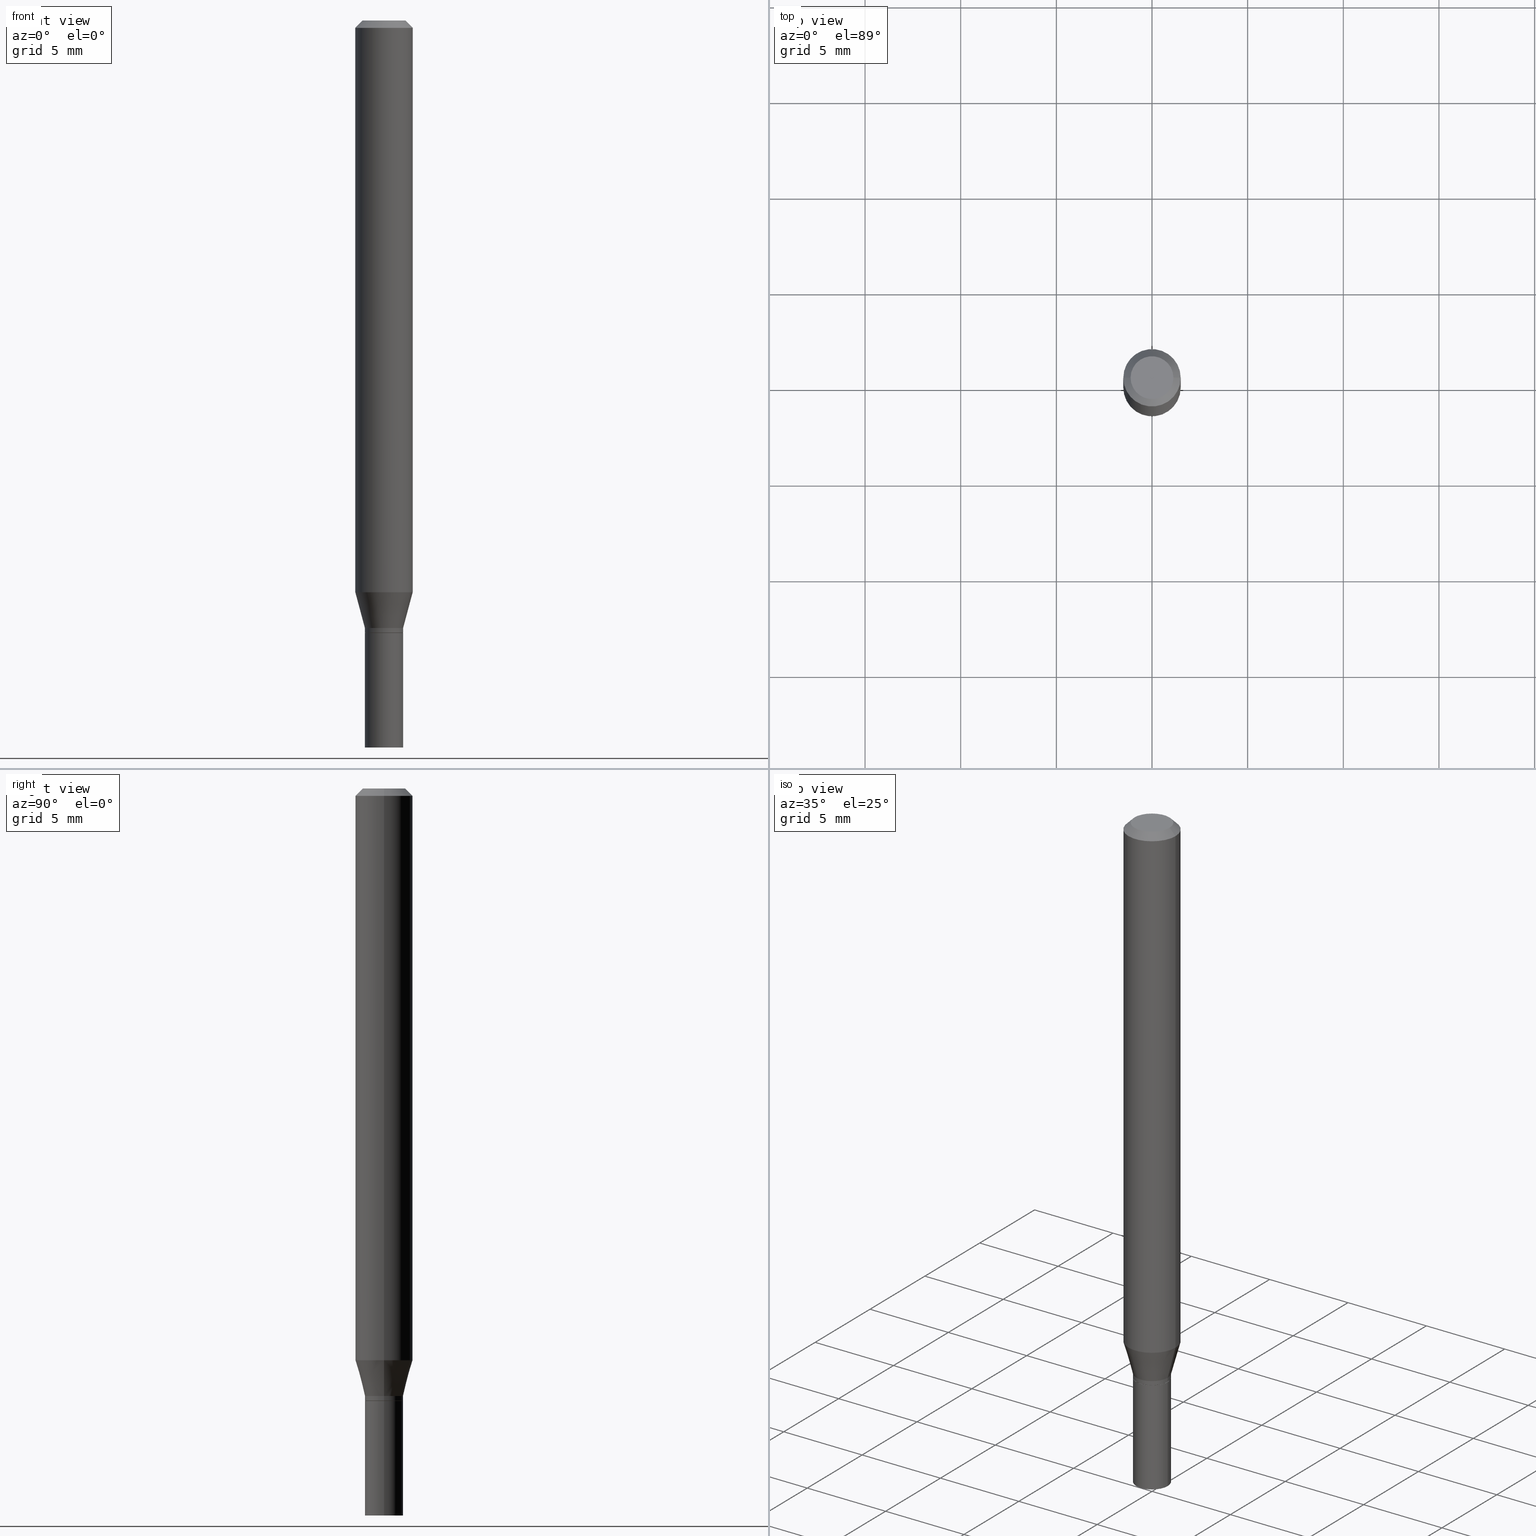
[diagram: canonical four-view strip — front | top / right | iso, engineering-drawing reading convention]
A machine part, canonical four-view strip (front | top / right | iso — engineering-drawing reading convention). The complete STEP part file that produces these views, byte-faithful:
ISO-10303-21;
HEADER;
FILE_DESCRIPTION (( 'STEP AP203' ),
    '1' );
FILE_NAME ('01841.STEP',
    '2024-03-20T01:55:53',
    ( '' ),
    ( '' ),
    'SwSTEP 2.0',
    'SolidWorks 2023',
    '' );
FILE_SCHEMA (( 'CONFIG_CONTROL_DESIGN' ));
ENDSEC;

DATA;
#1 = CARTESIAN_POINT ( 'NONE',  ( 0.03935000000000000303, -5.498384812410184577E-15, -1.496099999999999985 ) ) ;
#2 = AXIS2_PLACEMENT_3D ( 'NONE', #87, #148, #304 ) ;
#3 = CIRCLE ( 'NONE', #448, 0.03934999999999963527 ) ;
#4 = CYLINDRICAL_SURFACE ( 'NONE', #138, 0.03934999999999991283 ) ;
#5 = VERTEX_POINT ( 'NONE', #370 ) ;
#6 = VECTOR ( 'NONE', #249, 39.37007874015748143 ) ;
#7 = AXIS2_PLACEMENT_3D ( 'NONE', #216, #183, #440 ) ;
#8 = LINE ( 'NONE', #41, #355 ) ;
#9 = ORIENTED_EDGE ( 'NONE', *, *, #357, .T. ) ;
#10 = CARTESIAN_POINT ( 'NONE',  ( 3.668203209277705088E-31, -5.237222008264718399E-17, -0.01499999999999999944 ) ) ;
#11 = ORIENTED_EDGE ( 'NONE', *, *, #408, .T. ) ;
#12 = CARTESIAN_POINT ( 'NONE',  ( -0.03935000000000019732, -4.117573031617456554E-15, -1.259399999999999853 ) ) ;
#13 = CARTESIAN_POINT ( 'NONE',  ( 0.03934999999999991283, -2.747795813669539801E-16, 1.918775561275696519E-30 ) ) ;
#14 = DIRECTION ( 'NONE',  ( -1.000000000000000000, 6.982962677686265922E-15, -4.876176775795935793E-29 ) ) ;
#15 = APPROVAL ( #19, 'UNSPECIFIED' ) ;
#16 = CARTESIAN_POINT ( 'NONE',  ( 0.000000000000000000, 0.000000000000000000, 0.000000000000000000 ) ) ;
#17 = ADVANCED_FACE ( 'NONE', ( #307 ), #339, .T. ) ;
#18 = CARTESIAN_POINT ( 'NONE',  ( -0.03935000000000000303, -4.531662718404255344E-15, -1.259899999999999798 ) ) ;
#19 = APPROVAL_STATUS ( 'not_yet_approved' ) ;
#20 = EDGE_LOOP ( 'NONE', ( #153, #9, #322, #292 ) ) ;
#21 = VECTOR ( 'NONE', #61, 39.37007874015748143 ) ;
#22 = DIRECTION ( 'NONE',  ( 1.000000000000000000, 0.000000000000000000, 0.000000000000000000 ) ) ;
#23 = ADVANCED_FACE ( 'NONE', ( #302 ), #84, .T. ) ;
#24 = FACE_OUTER_BOUND ( 'NONE', #257, .T. ) ;
#25 = ORIENTED_EDGE ( 'NONE', *, *, #149, .T. ) ;
#26 = CARTESIAN_POINT ( 'NONE',  ( 0.000000000000000000, 0.000000000000000000, 0.000000000000000000 ) ) ;
#27 = COORDINATED_UNIVERSAL_TIME_OFFSET ( 5, 0, .BEHIND. ) ;
#28 = CARTESIAN_POINT ( 'NONE',  ( 0.05904999999999999832, -4.574846268510561447E-16, -0.01499999999999999944 ) ) ;
#29 = VECTOR ( 'NONE', #32, 39.37007874015748854 ) ;
#30 = AXIS2_PLACEMENT_3D ( 'NONE', #295, #434, #112 ) ;
#31 = EDGE_LOOP ( 'NONE', ( #394, #329, #110, #435 ) ) ;
#32 = DIRECTION ( 'NONE',  ( 0.2588190451025211836, 1.565188264969622559E-15, 0.9659258262890679791 ) ) ;
#33 = ORIENTED_EDGE ( 'NONE', *, *, #289, .T. ) ;
#34 = CARTESIAN_POINT ( 'NONE',  ( 3.081046148912652946E-29, -4.398917338808479031E-15, -1.259899999999999798 ) ) ;
#35 = EDGE_CURVE ( 'NONE', #396, #309, #231, .T. ) ;
#36 = CLOSED_SHELL ( 'NONE', ( #464, #356, #17, #367 ) ) ;
#37 = AXIS2_PLACEMENT_3D ( 'NONE', #10, #251, #433 ) ;
#38 = EDGE_CURVE ( 'NONE', #208, #396, #125, .T. ) ;
#39 = ORIENTED_EDGE ( 'NONE', *, *, #38, .F. ) ;
#40 = DIRECTION ( 'NONE',  ( -1.000000000000000000, 6.982962677686265922E-15, -4.876176775795935793E-29 ) ) ;
#41 = CARTESIAN_POINT ( 'NONE',  ( -0.03885000000000000259, -4.122871485965678956E-15, -1.259899999999999576 ) ) ;
#42 = ORIENTED_EDGE ( 'NONE', *, *, #149, .F. ) ;
#43 = EDGE_CURVE ( 'NONE', #330, #48, #178, .T. ) ;
#44 = DIRECTION ( 'NONE',  ( 1.000000000000000000, -6.982962677686266711E-15, 4.876176775795936353E-29 ) ) ;
#45 = PLANE ( 'NONE',  #141 ) ;
#46 = AXIS2_PLACEMENT_3D ( 'NONE', #96, #90, #172 ) ;
#47 = SECURITY_CLASSIFICATION ( '', '', #103 ) ;
#48 = VERTEX_POINT ( 'NONE', #18 ) ;
#49 =( LENGTH_UNIT ( ) NAMED_UNIT ( * ) SI_UNIT ( $, .METRE. ) );
#50 = DIRECTION ( 'NONE',  ( -2.445468806185136597E-29, 3.491481338843145583E-15, 1.000000000000000000 ) ) ;
#51 = APPLICATION_PROTOCOL_DEFINITION ( 'international standard', 'config_control_design', 1994, #462 ) ;
#52 = CARTESIAN_POINT ( 'NONE',  ( 0.000000000000000000, 0.000000000000000000, 0.000000000000000000 ) ) ;
#53 = AXIS2_PLACEMENT_3D ( 'NONE', #147, #111, #255 ) ;
#54 = DIRECTION ( 'NONE',  ( -0.2588190451025211836, 5.211531920934547886E-15, 0.9659258262890679791 ) ) ;
#55 = PERSON_AND_ORGANIZATION ( #139, #387 ) ;
#56 = ORIENTED_EDGE ( 'NONE', *, *, #171, .T. ) ;
#57 = ADVANCED_FACE ( 'NONE', ( #151 ), #334, .F. ) ;
#58 = CARTESIAN_POINT ( 'NONE',  ( 0.05904999999999999832, -4.647161662000212105E-16, -0.01499999999999999944 ) ) ;
#59 =( NAMED_UNIT ( * ) SI_UNIT ( $, .STERADIAN. ) SOLID_ANGLE_UNIT ( ) );
#60 = ORIENTED_EDGE ( 'NONE', *, *, #317, .T. ) ;
#61 = DIRECTION ( 'NONE',  ( 0.7071067811865502373, -7.319954787623265512E-15, -0.7071067811865447972 ) ) ;
#62 = APPROVAL_STATUS ( 'not_yet_approved' ) ;
#63 = EDGE_LOOP ( 'NONE', ( #239, #11, #429, #156 ) ) ;
#64 = DIRECTION ( 'NONE',  ( 1.000000000000000000, -6.982962677686269077E-15, 0.000000000000000000 ) ) ;
#65 = CONICAL_SURFACE ( 'NONE', #115, 0.03934999999999963527, 0.2617993877991499074 ) ;
#66 = ORIENTED_EDGE ( 'NONE', *, *, #261, .T. ) ;
#67 = DIRECTION ( 'NONE',  ( -2.445468806185136597E-29, 3.491481338843145583E-15, 1.000000000000000000 ) ) ;
#68 = CIRCLE ( 'NONE', #333, 0.04404999999999999888 ) ;
#69 = CONICAL_SURFACE ( 'NONE', #403, 0.03885000000000000259, 0.7853981633980202659 ) ;
#70 = ORIENTED_EDGE ( 'NONE', *, *, #317, .F. ) ;
#71 = ORIENTED_EDGE ( 'NONE', *, *, #116, .T. ) ;
#72 = CARTESIAN_POINT ( 'NONE',  ( 3.081046148912652386E-29, -4.398917338808477453E-15, -1.259899999999999576 ) ) ;
#73 = DIRECTION ( 'NONE',  ( -0.7071067811869518049, 7.493145998871813553E-15, 0.7071067811861430075 ) ) ;
#74 = EDGE_LOOP ( 'NONE', ( #456, #145, #71, #270 ) ) ;
#75 = AXIS2_PLACEMENT_3D ( 'NONE', #127, #463, #64 ) ;
#76 = CC_DESIGN_PERSON_AND_ORGANIZATION_ASSIGNMENT ( #277, #466, ( #459 ) ) ;
#77 = DIRECTION ( 'NONE',  ( 1.000000000000000000, -6.982962677686265922E-15, 4.888540261209747396E-29 ) ) ;
#78 = UNCERTAINTY_MEASURE_WITH_UNIT (LENGTH_MEASURE( 1.000000000000000082E-05 ), #374, 'distance_accuracy_value', 'NONE');
#79 = CIRCLE ( 'NONE', #305, 0.05904999999999999832 ) ;
#80 = ORIENTED_EDGE ( 'NONE', *, *, #416, .F. ) ;
#81 = DATE_TIME_ROLE ( 'creation_date' ) ;
#82 = ORIENTED_EDGE ( 'NONE', *, *, #441, .T. ) ;
#83 = CARTESIAN_POINT ( 'NONE',  ( 0.000000000000000000, 0.000000000000000000, 0.000000000000000000 ) ) ;
#84 = CYLINDRICAL_SURFACE ( 'NONE', #205, 0.05904999999999999832 ) ;
#85 = CARTESIAN_POINT ( 'NONE',  ( 3.079823414509561266E-29, -4.397171598139057527E-15, -1.259399999999999853 ) ) ;
#86 = ORIENTED_EDGE ( 'NONE', *, *, #104, .T. ) ;
#87 = CARTESIAN_POINT ( 'NONE',  ( 3.081046148912652946E-29, -4.398917338808479031E-15, -1.259899999999999798 ) ) ;
#88 = APPROVAL_DATE_TIME ( #124, #15 ) ;
#89 = VECTOR ( 'NONE', #368, 39.37007874015748143 ) ;
#90 = DIRECTION ( 'NONE',  ( -2.445468806185136597E-29, 3.491481338843145583E-15, 1.000000000000000000 ) ) ;
#91 = APPROVAL ( #62, 'UNSPECIFIED' ) ;
#92 = ORIENTED_EDGE ( 'NONE', *, *, #181, .F. ) ;
#93 = EDGE_CURVE ( 'NONE', #114, #5, #296, .T. ) ;
#94 = LINE ( 'NONE', #420, #29 ) ;
#95 = CARTESIAN_POINT ( 'NONE',  ( -0.03934999999999963527, -3.886764496053970286E-15, -1.250099999999999767 ) ) ;
#96 = CARTESIAN_POINT ( 'NONE',  ( 0.000000000000000000, 0.000000000000000000, 0.000000000000000000 ) ) ;
#97 = AXIS2_PLACEMENT_3D ( 'NONE', #268, #185, #405 ) ;
#98 = DIRECTION ( 'NONE',  ( -1.000000000000000000, 6.982962677686266711E-15, 0.000000000000000000 ) ) ;
#99 = AXIS2_PLACEMENT_3D ( 'NONE', #186, #143, #40 ) ;
#100 = COORDINATED_UNIVERSAL_TIME_OFFSET ( 5, 0, .BEHIND. ) ;
#101 = DIRECTION ( 'NONE',  ( 1.000000000000000000, -6.982962677686265922E-15, 4.888540261209747396E-29 ) ) ;
#102 = EDGE_CURVE ( 'NONE', #162, #348, #163, .T. ) ;
#103 = SECURITY_CLASSIFICATION_LEVEL ( 'unclassified' ) ;
#104 = EDGE_CURVE ( 'NONE', #309, #284, #228, .T. ) ;
#105 = DIRECTION ( 'NONE',  ( 1.000000000000000000, -6.982962677686266711E-15, 4.876176775795935793E-29 ) ) ;
#106 = MANIFOLD_SOLID_BREP ( 'Body-Move/Copy2[1]', #36 ) ;
#107 = CARTESIAN_POINT ( 'NONE',  ( 0.03934999999999963527, -4.639480403054768534E-15, -1.250099999999999767 ) ) ;
#108 = EDGE_LOOP ( 'NONE', ( #70, #25, #66, #202 ) ) ;
#109 = FACE_OUTER_BOUND ( 'NONE', #342, .T. ) ;
#110 = ORIENTED_EDGE ( 'NONE', *, *, #201, .T. ) ;
#111 = DIRECTION ( 'NONE',  ( -2.445468806185136597E-29, 3.491481338843145583E-15, 1.000000000000000000 ) ) ;
#112 = DIRECTION ( 'NONE',  ( -1.000000000000000000, 6.982962677686266711E-15, 0.000000000000000000 ) ) ;
#113 = EDGE_CURVE ( 'NONE', #236, #114, #389, .T. ) ;
#114 = VERTEX_POINT ( 'NONE', #58 ) ;
#115 = AXIS2_PLACEMENT_3D ( 'NONE', #158, #238, #415 ) ;
#116 = EDGE_CURVE ( 'NONE', #327, #5, #319, .T. ) ;
#117 = DIRECTION ( 'NONE',  ( -2.445468806185136597E-29, 3.491481338843145583E-15, 1.000000000000000000 ) ) ;
#118 = CYLINDRICAL_SURFACE ( 'NONE', #413, 0.03935000000000000303 ) ;
#119 = DIRECTION ( 'NONE',  ( 1.000000000000000000, -6.982962677686266711E-15, 4.876176775795936353E-29 ) ) ;
#120 = PERSON_AND_ORGANIZATION_ROLE ( 'creator' ) ;
#121 = AXIS2_PLACEMENT_3D ( 'NONE', #222, #150, #44 ) ;
#122 = ORIENTED_EDGE ( 'NONE', *, *, #310, .T. ) ;
#123 = DIRECTION ( 'NONE',  ( 1.000000000000000000, -6.982962677686266711E-15, 0.000000000000000000 ) ) ;
#124 = DATE_AND_TIME ( #409, #248 ) ;
#125 = LINE ( 'NONE', #13, #89 ) ;
#126 = ORIENTED_EDGE ( 'NONE', *, *, #260, .F. ) ;
#127 = CARTESIAN_POINT ( 'NONE',  ( 3.658665880933582389E-29, -5.223605231043229660E-15, -1.496099999999999985 ) ) ;
#128 = CC_DESIGN_PERSON_AND_ORGANIZATION_ASSIGNMENT ( #136, #384, ( #47 ) ) ;
#129 = ADVANCED_FACE ( 'NONE', ( #234 ), #427, .T. ) ;
#130 = VERTEX_POINT ( 'NONE', #411 ) ;
#131 = LOCAL_TIME ( 21, 55, 53.00000000000000000, #27 ) ;
#132 = DIRECTION ( 'NONE',  ( -2.445468806185136597E-29, 3.491481338843145583E-15, 1.000000000000000000 ) ) ;
#133 = FACE_OUTER_BOUND ( 'NONE', #278, .T. ) ;
#134 = EDGE_LOOP ( 'NONE', ( #366, #122, #432, #254 ) ) ;
#135 = DIRECTION ( 'NONE',  ( 1.000000000000000000, -6.982962677686265133E-15, 0.000000000000000000 ) ) ;
#136 = PERSON_AND_ORGANIZATION ( #139, #387 ) ;
#137 = CARTESIAN_POINT ( 'NONE',  ( 0.05904999999999999832, -4.123439461173740327E-16, 2.879382386107500220E-30 ) ) ;
#138 = AXIS2_PLACEMENT_3D ( 'NONE', #83, #233, #105 ) ;
#139 = PERSON ( 'UNSPECIFIED', 'UNSPECIFIED', 'UNSPECIFIED', ('UNSPECIFIED'), ('UNSPECIFIED'), ('UNSPECIFIED') ) ;
#140 = VECTOR ( 'NONE', #54, 39.37007874015748854 ) ;
#141 = AXIS2_PLACEMENT_3D ( 'NONE', #395, #365, #14 ) ;
#142 = ORIENTED_EDGE ( 'NONE', *, *, #102, .F. ) ;
#143 = DIRECTION ( 'NONE',  ( 2.438088387897960049E-29, -3.491481338843145188E-15, -1.000000000000000000 ) ) ;
#144 = CARTESIAN_POINT ( 'NONE',  ( 0.03935000000000000303, -4.673696920175433159E-15, -1.259899999999999798 ) ) ;
#145 = ORIENTED_EDGE ( 'NONE', *, *, #213, .F. ) ;
#146 = DIRECTION ( 'NONE',  ( 1.000000000000000000, -6.982962677686265133E-15, 0.000000000000000000 ) ) ;
#147 = CARTESIAN_POINT ( 'NONE',  ( 3.081046148912652386E-29, -4.398917338808477453E-15, -1.259899999999999576 ) ) ;
#148 = DIRECTION ( 'NONE',  ( -2.438088387897960049E-29, 3.491481338843145188E-15, 1.000000000000000000 ) ) ;
#149 = EDGE_CURVE ( 'NONE', #215, #300, #458, .T. ) ;
#150 = DIRECTION ( 'NONE',  ( -2.445468806185136597E-29, 3.491481338843145583E-15, 1.000000000000000000 ) ) ;
#151 = FACE_OUTER_BOUND ( 'NONE', #418, .T. ) ;
#152 = APPROVAL_ROLE ( '' ) ;
#153 = ORIENTED_EDGE ( 'NONE', *, *, #104, .F. ) ;
#154 = AXIS2_PLACEMENT_3D ( 'NONE', #52, #263, #22 ) ;
#155 = DIRECTION ( 'NONE',  ( -2.445468806185136597E-29, 3.491481338843145583E-15, 1.000000000000000000 ) ) ;
#156 = ORIENTED_EDGE ( 'NONE', *, *, #201, .F. ) ;
#157 = CC_DESIGN_DATE_AND_TIME_ASSIGNMENT ( #404, #81, ( #378 ) ) ;
#158 = CARTESIAN_POINT ( 'NONE',  ( 3.057080554612038970E-29, -4.364700821687815983E-15, -1.250099999999999767 ) ) ;
#159 = ORIENTED_EDGE ( 'NONE', *, *, #116, .F. ) ;
#160 = DIRECTION ( 'NONE',  ( 1.000000000000000000, -6.982962677686256455E-15, 0.000000000000000000 ) ) ;
#161 = CALENDAR_DATE ( 2024, 19, 3 ) ;
#162 = VERTEX_POINT ( 'NONE', #1 ) ;
#163 = CIRCLE ( 'NONE', #97, 0.03935000000000000303 ) ;
#164 =( GEOMETRIC_REPRESENTATION_CONTEXT ( 3 ) GLOBAL_UNCERTAINTY_ASSIGNED_CONTEXT ( ( #78 ) ) GLOBAL_UNIT_ASSIGNED_CONTEXT ( ( #374, #312, #59 ) ) REPRESENTATION_CONTEXT ( 'NONE', 'WORKASPACE' ) );
#165 = CARTESIAN_POINT ( 'NONE',  ( 3.668203209277705088E-31, -5.237222008264718399E-17, -0.01499999999999999944 ) ) ;
#166 = ORIENTED_EDGE ( 'NONE', *, *, #113, .T. ) ;
#167 = DIRECTION ( 'NONE',  ( 0.7071067811869518049, -2.468850131086492060E-15, 0.7071067811861430075 ) ) ;
#168 = APPROVAL_DATE_TIME ( #421, #91 ) ;
#169 = EDGE_CURVE ( 'NONE', #48, #330, #247, .T. ) ;
#170 = ORIENTED_EDGE ( 'NONE', *, *, #461, .F. ) ;
#171 = EDGE_CURVE ( 'NONE', #130, #114, #203, .T. ) ;
#172 = DIRECTION ( 'NONE',  ( 1.000000000000000000, -6.982962677686266711E-15, 4.876176775795936353E-29 ) ) ;
#173 = ADVANCED_FACE ( 'NONE', ( #207 ), #422, .T. ) ;
#174 = CLOSED_SHELL ( 'NONE', ( #199, #393, #352, #23, #253, #401, #188, #129, #364, #57, #173, #282 ) ) ;
#175 = CONICAL_SURFACE ( 'NONE', #30, 0.05904999999999999832, 0.7853981633974521648 ) ;
#176 = CALENDAR_DATE ( 2024, 19, 3 ) ;
#177 = EDGE_LOOP ( 'NONE', ( #142, #92 ) ) ;
#178 = CIRCLE ( 'NONE', #369, 0.03935000000000000303 ) ;
#179 = APPROVAL_PERSON_ORGANIZATION ( #338, #15, #152 ) ;
#180 = LINE ( 'NONE', #214, #264 ) ;
#181 = EDGE_CURVE ( 'NONE', #348, #162, #412, .T. ) ;
#182 = ORIENTED_EDGE ( 'NONE', *, *, #431, .T. ) ;
#183 = DIRECTION ( 'NONE',  ( -2.445468806185136597E-29, 3.491481338843145583E-15, 1.000000000000000000 ) ) ;
#184 = FACE_OUTER_BOUND ( 'NONE', #280, .T. ) ;
#185 = DIRECTION ( 'NONE',  ( -2.445468806185136597E-29, 3.491481338843145583E-15, 1.000000000000000000 ) ) ;
#186 = CARTESIAN_POINT ( 'NONE',  ( 2.747795813669854360E-16, 0.03934999999999560377, -1.259900000000000020 ) ) ;
#187 = CARTESIAN_POINT ( 'NONE',  ( 3.577647911566500614E-29, -5.339627574433336753E-15, -1.496099999999999985 ) ) ;
#188 = ADVANCED_FACE ( 'NONE', ( #133 ), #244, .T. ) ;
#189 = FACE_OUTER_BOUND ( 'NONE', #414, .T. ) ;
#190 = CC_DESIGN_APPROVAL ( #245, ( #378 ) ) ;
#191 = CC_DESIGN_PERSON_AND_ORGANIZATION_ASSIGNMENT ( #55, #120, ( #378 ) ) ;
#192 = DIRECTION ( 'NONE',  ( -2.445468806185136877E-29, 3.491481338843145188E-15, 1.000000000000000000 ) ) ;
#193 = ORIENTED_EDGE ( 'NONE', *, *, #441, .F. ) ;
#194 = PERSON_AND_ORGANIZATION_ROLE ( 'design_owner' ) ;
#195 = ORIENTED_EDGE ( 'NONE', *, *, #461, .T. ) ;
#196 = LOCAL_TIME ( 21, 55, 53.00000000000000000, #100 ) ;
#197 = DIRECTION ( 'NONE',  ( -2.445468806185136597E-29, 3.491481338843145583E-15, 1.000000000000000000 ) ) ;
#198 = CARTESIAN_POINT ( 'NONE',  ( 0.000000000000000000, 0.000000000000000000, 0.000000000000000000 ) ) ;
#199 = ADVANCED_FACE ( 'NONE', ( #237 ), #279, .T. ) ;
#200 = DIRECTION ( 'NONE',  ( 1.000000000000000000, -6.982962677686269077E-15, 0.000000000000000000 ) ) ;
#201 = EDGE_CURVE ( 'NONE', #162, #330, #417, .T. ) ;
#202 = ORIENTED_EDGE ( 'NONE', *, *, #310, .F. ) ;
#203 = LINE ( 'NONE', #137, #361 ) ;
#204 = EDGE_LOOP ( 'NONE', ( #229, #82, #381, #328 ) ) ;
#205 = AXIS2_PLACEMENT_3D ( 'NONE', #16, #155, #119 ) ;
#206 = CONICAL_SURFACE ( 'NONE', #7, 0.03934999999999963527, 0.2617993877991499074 ) ;
#207 = FACE_OUTER_BOUND ( 'NONE', #108, .T. ) ;
#208 = VERTEX_POINT ( 'NONE', #286 ) ;
#209 = DIRECTION ( 'NONE',  ( -0.7071067811865502373, 2.468850131082285065E-15, -0.7071067811865447972 ) ) ;
#210 = PRODUCT ( '01841', '01841', '', ( #450 ) ) ;
#211 = AXIS2_PLACEMENT_3D ( 'NONE', #252, #266, #438 ) ;
#212 = SHAPE_DEFINITION_REPRESENTATION ( #419, #336 ) ;
#213 = EDGE_CURVE ( 'NONE', #327, #236, #68, .T. ) ;
#214 = CARTESIAN_POINT ( 'NONE',  ( -0.05904999999999999832, 4.195754854663391478E-16, -2.904631170795521892E-30 ) ) ;
#215 = VERTEX_POINT ( 'NONE', #276 ) ;
#216 = CARTESIAN_POINT ( 'NONE',  ( 3.057080554612038970E-29, -4.364700821687815983E-15, -1.250099999999999767 ) ) ;
#217 = CARTESIAN_POINT ( 'NONE',  ( -0.03935000000000000303, -4.531662718404255344E-15, -1.496099999999999985 ) ) ;
#218 = AXIS2_PLACEMENT_3D ( 'NONE', #343, #311, #347 ) ;
#219 = APPROVAL_PERSON_ORGANIZATION ( #460, #91, #358 ) ;
#220 = FACE_OUTER_BOUND ( 'NONE', #20, .T. ) ;
#221 = ORIENTED_EDGE ( 'NONE', *, *, #35, .T. ) ;
#222 = CARTESIAN_POINT ( 'NONE',  ( 0.000000000000000000, 0.000000000000000000, 0.000000000000000000 ) ) ;
#223 = CARTESIAN_POINT ( 'NONE',  ( 2.877286262101783614E-29, -4.108002222408059533E-15, -1.176578599090891686 ) ) ;
#224 = PRODUCT_RELATED_PRODUCT_CATEGORY ( 'detail', '', ( #210 ) ) ;
#225 = DIRECTION ( 'NONE',  ( 1.000000000000000000, -6.982962677686266711E-15, 4.876176775795936353E-29 ) ) ;
#226 = CARTESIAN_POINT ( 'NONE',  ( 3.057080554612038970E-29, -4.364700821687815983E-15, -1.250099999999999767 ) ) ;
#227 = DIRECTION ( 'NONE',  ( -2.445468806185136597E-29, 3.491481338843145583E-15, 1.000000000000000000 ) ) ;
#228 = LINE ( 'NONE', #297, #140 ) ;
#229 = ORIENTED_EDGE ( 'NONE', *, *, #267, .T. ) ;
#230 = PERSON_AND_ORGANIZATION_ROLE ( 'creator' ) ;
#231 = CIRCLE ( 'NONE', #386, 0.03934999999999963527 ) ;
#232 = CIRCLE ( 'NONE', #37, 0.05904999999999999832 ) ;
#233 = DIRECTION ( 'NONE',  ( -2.445468806185136597E-29, 3.491481338843145583E-15, 1.000000000000000000 ) ) ;
#234 = FACE_OUTER_BOUND ( 'NONE', #74, .T. ) ;
#235 = APPLICATION_PROTOCOL_DEFINITION ( 'international standard', 'config_control_design', 1994, #316 ) ;
#236 = VERTEX_POINT ( 'NONE', #455 ) ;
#237 = FACE_OUTER_BOUND ( 'NONE', #443, .T. ) ;
#238 = DIRECTION ( 'NONE',  ( -2.445468806185136597E-29, 3.491481338843145583E-15, 1.000000000000000000 ) ) ;
#239 = ORIENTED_EDGE ( 'NONE', *, *, #102, .T. ) ;
#240 = CARTESIAN_POINT ( 'NONE',  ( 3.057080554612038970E-29, -4.364700821687815983E-15, -1.250099999999999767 ) ) ;
#241 = AXIS2_PLACEMENT_3D ( 'NONE', #165, #385, #98 ) ;
#242 = VECTOR ( 'NONE', #192, 39.37007874015748143 ) ;
#243 = CARTESIAN_POINT ( 'NONE',  ( -0.05904999999999999832, 3.599717260347268549E-16, -0.01499999999999999944 ) ) ;
#244 = CYLINDRICAL_SURFACE ( 'NONE', #46, 0.05904999999999999832 ) ;
#245 = APPROVAL ( #271, 'UNSPECIFIED' ) ;
#246 = COORDINATED_UNIVERSAL_TIME_OFFSET ( 5, 0, .BEHIND. ) ;
#247 = CIRCLE ( 'NONE', #354, 0.03935000000000000303 ) ;
#248 = LOCAL_TIME ( 21, 55, 53.00000000000000000, #306 ) ;
#249 = DIRECTION ( 'NONE',  ( -2.445468806185136877E-29, 3.491481338843145188E-15, 1.000000000000000000 ) ) ;
#250 = ORIENTED_EDGE ( 'NONE', *, *, #383, .T. ) ;
#251 = DIRECTION ( 'NONE',  ( -2.445468806185136597E-29, 3.491481338843145583E-15, 1.000000000000000000 ) ) ;
#252 = CARTESIAN_POINT ( 'NONE',  ( 3.079823414509561266E-29, -4.397171598139057527E-15, -1.259399999999999853 ) ) ;
#253 = ADVANCED_FACE ( 'NONE', ( #24 ), #65, .T. ) ;
#254 = ORIENTED_EDGE ( 'NONE', *, *, #357, .F. ) ;
#255 = DIRECTION ( 'NONE',  ( 1.000000000000000000, -6.982962677686256455E-15, 0.000000000000000000 ) ) ;
#256 = FACE_OUTER_BOUND ( 'NONE', #177, .T. ) ;
#257 = EDGE_LOOP ( 'NONE', ( #221, #86, #398, #126 ) ) ;
#258 = AXIS2_PLACEMENT_3D ( 'NONE', #392, #117, #77 ) ;
#259 = LINE ( 'NONE', #294, #6 ) ;
#260 = EDGE_CURVE ( 'NONE', #396, #130, #94, .T. ) ;
#261 = EDGE_CURVE ( 'NONE', #300, #208, #382, .T. ) ;
#262 = CARTESIAN_POINT ( 'NONE',  ( -0.04404999999999999888, 3.337856159934032167E-16, -1.131095217488012768E-16 ) ) ;
#263 = DIRECTION ( 'NONE',  ( 0.000000000000000000, 0.000000000000000000, 1.000000000000000000 ) ) ;
#264 = VECTOR ( 'NONE', #399, 39.37007874015748143 ) ;
#265 = AXIS2_PLACEMENT_3D ( 'NONE', #85, #227, #344 ) ;
#266 = DIRECTION ( 'NONE',  ( -2.445468806185136597E-29, 3.491481338843145583E-15, 1.000000000000000000 ) ) ;
#267 = EDGE_CURVE ( 'NONE', #130, #284, #325, .T. ) ;
#268 = CARTESIAN_POINT ( 'NONE',  ( 3.658665880933582389E-29, -5.223605231043229660E-15, -1.496099999999999985 ) ) ;
#269 = PERSON_AND_ORGANIZATION ( #139, #387 ) ;
#270 = ORIENTED_EDGE ( 'NONE', *, *, #391, .T. ) ;
#271 = APPROVAL_STATUS ( 'not_yet_approved' ) ;
#272 = ORIENTED_EDGE ( 'NONE', *, *, #169, .T. ) ;
#273 = DIRECTION ( 'NONE',  ( -2.445468806185136877E-29, 3.491481338843145188E-15, 1.000000000000000000 ) ) ;
#274 = PERSON_AND_ORGANIZATION ( #139, #387 ) ;
#275 = VECTOR ( 'NONE', #457, 39.37007874015748143 ) ;
#276 = CARTESIAN_POINT ( 'NONE',  ( -0.03885000000000000259, -4.120222258791567755E-15, -1.259899999999999576 ) ) ;
#277 = PERSON_AND_ORGANIZATION ( #139, #387 ) ;
#278 = EDGE_LOOP ( 'NONE', ( #193, #182, #56, #293 ) ) ;
#279 = CYLINDRICAL_SURFACE ( 'NONE', #290, 0.03934999999999991283 ) ;
#280 = EDGE_LOOP ( 'NONE', ( #80, #166, #345, #159 ) ) ;
#281 = FACE_OUTER_BOUND ( 'NONE', #134, .T. ) ;
#282 = ADVANCED_FACE ( 'NONE', ( #281 ), #4, .T. ) ;
#283 = DATE_AND_TIME ( #176, #196 ) ;
#284 = VERTEX_POINT ( 'NONE', #442 ) ;
#285 = AXIS2_PLACEMENT_3D ( 'NONE', #379, #197, #160 ) ;
#286 = CARTESIAN_POINT ( 'NONE',  ( 0.03935000000000019732, -4.671951179506013233E-15, -1.259399999999999853 ) ) ;
#287 = CARTESIAN_POINT ( 'NONE',  ( 0.03885000000000000259, -4.670205438836588574E-15, -1.259899999999999576 ) ) ;
#288 = CARTESIAN_POINT ( 'NONE',  ( -0.03934999999999991283, 2.795985665215988037E-16, -1.935600958015301438E-30 ) ) ;
#289 = EDGE_CURVE ( 'NONE', #410, #309, #454, .T. ) ;
#290 = AXIS2_PLACEMENT_3D ( 'NONE', #26, #323, #314 ) ;
#291 = CIRCLE ( 'NONE', #211, 0.03935000000000019732 ) ;
#292 = ORIENTED_EDGE ( 'NONE', *, *, #431, .F. ) ;
#293 = ORIENTED_EDGE ( 'NONE', *, *, #391, .F. ) ;
#294 = CARTESIAN_POINT ( 'NONE',  ( -0.03935000000000000303, 2.795985665215994447E-16, -1.935600958015305291E-30 ) ) ;
#295 = CARTESIAN_POINT ( 'NONE',  ( 3.668203209277705088E-31, -5.237222008264718399E-17, -0.01499999999999999944 ) ) ;
#296 = CIRCLE ( 'NONE', #437, 0.05904999999999999832 ) ;
#297 = CARTESIAN_POINT ( 'NONE',  ( -0.03934999999999963527, -4.085102255166218954E-15, -1.250099999999999767 ) ) ;
#298 = CIRCLE ( 'NONE', #265, 0.03935000000000019732 ) ;
#299 = DIRECTION ( 'NONE',  ( 1.000000000000000000, -6.982962677686256455E-15, 0.000000000000000000 ) ) ;
#300 = VERTEX_POINT ( 'NONE', #287 ) ;
#301 = FACE_OUTER_BOUND ( 'NONE', #388, .T. ) ;
#302 = FACE_OUTER_BOUND ( 'NONE', #204, .T. ) ;
#303 = APPROVAL_ROLE ( '' ) ;
#304 = DIRECTION ( 'NONE',  ( 1.000000000000000000, -6.982962677686265922E-15, 4.876176775795935793E-29 ) ) ;
#305 = AXIS2_PLACEMENT_3D ( 'NONE', #223, #360, #146 ) ;
#306 = COORDINATED_UNIVERSAL_TIME_OFFSET ( 5, 0, .BEHIND. ) ;
#307 = FACE_OUTER_BOUND ( 'NONE', #31, .T. ) ;
#308 = COORDINATED_UNIVERSAL_TIME_OFFSET ( 5, 0, .BEHIND. ) ;
#309 = VERTEX_POINT ( 'NONE', #95 ) ;
#310 = EDGE_CURVE ( 'NONE', #410, #208, #291, .T. ) ;
#311 = DIRECTION ( 'NONE',  ( -2.445468806185136597E-29, 3.491481338843145583E-15, 1.000000000000000000 ) ) ;
#312 =( NAMED_UNIT ( * ) PLANE_ANGLE_UNIT ( ) SI_UNIT ( $, .RADIAN. ) );
#313 = ORIENTED_EDGE ( 'NONE', *, *, #213, .T. ) ;
#314 = DIRECTION ( 'NONE',  ( 1.000000000000000000, -6.982962677686266711E-15, 4.876176775795935793E-29 ) ) ;
#315 = CALENDAR_DATE ( 2024, 19, 3 ) ;
#316 = APPLICATION_CONTEXT ( 'configuration controlled 3d designs of mechanical parts and assemblies' ) ;
#317 = EDGE_CURVE ( 'NONE', #215, #410, #8, .T. ) ;
#318 = LOCAL_TIME ( 21, 55, 53.00000000000000000, #246 ) ;
#319 = LINE ( 'NONE', #243, #447 ) ;
#320 = ORIENTED_EDGE ( 'NONE', *, *, #35, .F. ) ;
#321 = CARTESIAN_POINT ( 'NONE',  ( 2.877286262101783614E-29, -4.108002222408059533E-15, -1.176578599090891686 ) ) ;
#322 = ORIENTED_EDGE ( 'NONE', *, *, #260, .T. ) ;
#323 = DIRECTION ( 'NONE',  ( -2.445468806185136597E-29, 3.491481338843145583E-15, 1.000000000000000000 ) ) ;
#324 = DATE_TIME_ROLE ( 'classification_date' ) ;
#325 = CIRCLE ( 'NONE', #350, 0.05904999999999999832 ) ;
#326 = DIRECTION ( 'NONE',  ( 1.000000000000000000, -6.982962677686265922E-15, 4.876176775795935793E-29 ) ) ;
#327 = VERTEX_POINT ( 'NONE', #262 ) ;
#328 = ORIENTED_EDGE ( 'NONE', *, *, #171, .F. ) ;
#329 = ORIENTED_EDGE ( 'NONE', *, *, #181, .T. ) ;
#330 = VERTEX_POINT ( 'NONE', #144 ) ;
#331 = DIRECTION ( 'NONE',  ( -2.445468806185136597E-29, 3.491481338843145583E-15, 1.000000000000000000 ) ) ;
#332 = DIRECTION ( 'NONE',  ( -2.438088387897960049E-29, 3.491481338843145188E-15, 1.000000000000000000 ) ) ;
#333 = AXIS2_PLACEMENT_3D ( 'NONE', #425, #132, #101 ) ;
#334 = PLANE ( 'NONE',  #2 ) ;
#335 = DIRECTION ( 'NONE',  ( -2.445468806185136597E-29, 3.491481338843145583E-15, 1.000000000000000000 ) ) ;
#336 = ADVANCED_BREP_SHAPE_REPRESENTATION ( '01841', ( #106, #424, #154 ), #164 ) ;
#337 = DIRECTION ( 'NONE',  ( 1.000000000000000000, -6.982962677686269077E-15, 0.000000000000000000 ) ) ;
#338 = PERSON_AND_ORGANIZATION ( #139, #387 ) ;
#339 = CYLINDRICAL_SURFACE ( 'NONE', #121, 0.03935000000000000303 ) ;
#340 = APPROVAL_PERSON_ORGANIZATION ( #341, #245, #303 ) ;
#341 = PERSON_AND_ORGANIZATION ( #139, #387 ) ;
#342 = EDGE_LOOP ( 'NONE', ( #363, #272 ) ) ;
#343 = CARTESIAN_POINT ( 'NONE',  ( 3.081046148912652386E-29, -4.398917338808477453E-15, -1.259899999999999576 ) ) ;
#344 = DIRECTION ( 'NONE',  ( 1.000000000000000000, -6.982962677686259611E-15, 0.000000000000000000 ) ) ;
#345 = ORIENTED_EDGE ( 'NONE', *, *, #93, .T. ) ;
#346 = CC_DESIGN_DATE_AND_TIME_ASSIGNMENT ( #283, #324, ( #47 ) ) ;
#347 = DIRECTION ( 'NONE',  ( 1.000000000000000000, -6.982962677686256455E-15, 0.000000000000000000 ) ) ;
#348 = VERTEX_POINT ( 'NONE', #217 ) ;
#349 = ORIENTED_EDGE ( 'NONE', *, *, #416, .T. ) ;
#350 = AXIS2_PLACEMENT_3D ( 'NONE', #321, #465, #135 ) ;
#351 = CARTESIAN_POINT ( 'NONE',  ( 0.03885000000000000259, -4.670205438836588574E-15, -1.259899999999999576 ) ) ;
#352 = ADVANCED_FACE ( 'NONE', ( #184 ), #175, .T. ) ;
#353 = CARTESIAN_POINT ( 'NONE',  ( 0.03935000000000000303, -2.747795813669546211E-16, 1.918775561275701074E-30 ) ) ;
#354 = AXIS2_PLACEMENT_3D ( 'NONE', #34, #67, #200 ) ;
#355 = VECTOR ( 'NONE', #73, 39.37007874015748854 ) ;
#356 = ADVANCED_FACE ( 'NONE', ( #256 ), #400, .F. ) ;
#357 = EDGE_CURVE ( 'NONE', #309, #396, #3, .T. ) ;
#358 = APPROVAL_ROLE ( '' ) ;
#359 = DIMENSIONAL_EXPONENTS ( 1.000000000000000000, 0.000000000000000000, 0.000000000000000000, 0.000000000000000000, 0.000000000000000000, 0.000000000000000000, 0.000000000000000000 ) ;
#360 = DIRECTION ( 'NONE',  ( -2.445468806185136597E-29, 3.491481338843145583E-15, 1.000000000000000000 ) ) ;
#361 = VECTOR ( 'NONE', #273, 39.37007874015748143 ) ;
#362 = CC_DESIGN_APPROVAL ( #15, ( #459 ) ) ;
#363 = ORIENTED_EDGE ( 'NONE', *, *, #43, .T. ) ;
#364 = ADVANCED_FACE ( 'NONE', ( #301 ), #45, .F. ) ;
#365 = DIRECTION ( 'NONE',  ( 2.438088387897960049E-29, -3.491481338843145188E-15, -1.000000000000000000 ) ) ;
#366 = ORIENTED_EDGE ( 'NONE', *, *, #289, .F. ) ;
#367 = ADVANCED_FACE ( 'NONE', ( #109 ), #436, .F. ) ;
#368 = DIRECTION ( 'NONE',  ( -2.445468806185136877E-29, 3.491481338843145188E-15, 1.000000000000000000 ) ) ;
#369 = AXIS2_PLACEMENT_3D ( 'NONE', #407, #50, #337 ) ;
#370 = CARTESIAN_POINT ( 'NONE',  ( -0.05904999999999999832, -1.660611735779014010E-15, -0.01499999999999999944 ) ) ;
#371 = CC_DESIGN_APPROVAL ( #91, ( #47 ) ) ;
#372 = DIRECTION ( 'NONE',  ( -2.445468806185136597E-29, 3.491481338843145583E-15, 1.000000000000000000 ) ) ;
#373 = DIRECTION ( 'NONE',  ( -2.445468806185136597E-29, 3.491481338843145583E-15, 1.000000000000000000 ) ) ;
#374 =( CONVERSION_BASED_UNIT ( 'INCH', #406 ) LENGTH_UNIT ( ) NAMED_UNIT ( #359 ) );
#375 = DESIGN_CONTEXT ( 'detailed design', #316, 'design' ) ;
#376 = CARTESIAN_POINT ( 'NONE',  ( 3.668203209277705088E-31, -5.237222008264718399E-17, -0.01499999999999999944 ) ) ;
#377 = AXIS2_PLACEMENT_3D ( 'NONE', #187, #332, #326 ) ;
#378 = PRODUCT_DEFINITION ( 'UNKNOWN', '', #459, #375 ) ;
#379 = CARTESIAN_POINT ( 'NONE',  ( 3.081046148912652386E-29, -4.398917338808477453E-15, -1.259899999999999576 ) ) ;
#380 = FACE_OUTER_BOUND ( 'NONE', #63, .T. ) ;
#381 = ORIENTED_EDGE ( 'NONE', *, *, #93, .F. ) ;
#382 = LINE ( 'NONE', #351, #390 ) ;
#383 = EDGE_CURVE ( 'NONE', #300, #215, #439, .T. ) ;
#384 = PERSON_AND_ORGANIZATION_ROLE ( 'classification_officer' ) ;
#385 = DIRECTION ( 'NONE',  ( 2.445468806185136597E-29, -3.491481338843145583E-15, -1.000000000000000000 ) ) ;
#386 = AXIS2_PLACEMENT_3D ( 'NONE', #226, #373, #451 ) ;
#387 = ORGANIZATION ( 'UNSPECIFIED', 'UNSPECIFIED', '' ) ;
#388 = EDGE_LOOP ( 'NONE', ( #313, #349 ) ) ;
#389 = LINE ( 'NONE', #28, #21 ) ;
#390 = VECTOR ( 'NONE', #167, 39.37007874015748854 ) ;
#391 = EDGE_CURVE ( 'NONE', #5, #114, #232, .T. ) ;
#392 = CARTESIAN_POINT ( 'NONE',  ( 2.766058071192073201E-45, -3.949197844314047599E-31, -1.131095217487990335E-16 ) ) ;
#393 = ADVANCED_FACE ( 'NONE', ( #189 ), #69, .T. ) ;
#394 = ORIENTED_EDGE ( 'NONE', *, *, #408, .F. ) ;
#395 = CARTESIAN_POINT ( 'NONE',  ( 3.075995059520799729E-16, 0.04404999999999999888, -2.103545138504400702E-16 ) ) ;
#396 = VERTEX_POINT ( 'NONE', #107 ) ;
#397 = LOCAL_TIME ( 21, 55, 53.00000000000000000, #308 ) ;
#398 = ORIENTED_EDGE ( 'NONE', *, *, #267, .F. ) ;
#399 = DIRECTION ( 'NONE',  ( -2.445468806185136877E-29, 3.491481338843145188E-15, 1.000000000000000000 ) ) ;
#400 = PLANE ( 'NONE',  #377 ) ;
#401 = ADVANCED_FACE ( 'NONE', ( #220 ), #206, .T. ) ;
#402 = DATE_AND_TIME ( #161, #131 ) ;
#403 = AXIS2_PLACEMENT_3D ( 'NONE', #72, #335, #299 ) ;
#404 = DATE_AND_TIME ( #452, #397 ) ;
#405 = DIRECTION ( 'NONE',  ( 1.000000000000000000, -6.982962677686269077E-15, 0.000000000000000000 ) ) ;
#406 = LENGTH_MEASURE_WITH_UNIT ( LENGTH_MEASURE( 0.02539999999999999897 ), #49 );
#407 = CARTESIAN_POINT ( 'NONE',  ( 3.081046148912652946E-29, -4.398917338808479031E-15, -1.259899999999999798 ) ) ;
#408 = EDGE_CURVE ( 'NONE', #348, #48, #259, .T. ) ;
#409 = CALENDAR_DATE ( 2024, 19, 3 ) ;
#410 = VERTEX_POINT ( 'NONE', #12 ) ;
#411 = CARTESIAN_POINT ( 'NONE',  ( 0.05904999999999999832, -4.520346168525434453E-15, -1.176578599090891686 ) ) ;
#412 = CIRCLE ( 'NONE', #75, 0.03935000000000000303 ) ;
#413 = AXIS2_PLACEMENT_3D ( 'NONE', #198, #372, #225 ) ;
#414 = EDGE_LOOP ( 'NONE', ( #250, #60, #170, #446 ) ) ;
#415 = DIRECTION ( 'NONE',  ( 1.000000000000000000, -6.982962677686273021E-15, 0.000000000000000000 ) ) ;
#416 = EDGE_CURVE ( 'NONE', #236, #327, #423, .T. ) ;
#417 = LINE ( 'NONE', #353, #275 ) ;
#418 = EDGE_LOOP ( 'NONE', ( #453, #42 ) ) ;
#419 = PRODUCT_DEFINITION_SHAPE ( 'NONE', 'NONE',  #378 ) ;
#420 = CARTESIAN_POINT ( 'NONE',  ( 0.03934999999999963527, -4.639480403054768534E-15, -1.250099999999999767 ) ) ;
#421 = DATE_AND_TIME ( #315, #318 ) ;
#422 = CONICAL_SURFACE ( 'NONE', #218, 0.03885000000000000259, 0.7853981633980202659 ) ;
#423 = CIRCLE ( 'NONE', #258, 0.04404999999999999888 ) ;
#424 = MANIFOLD_SOLID_BREP ( 'Body-Move/Copy2[2]', #174 ) ;
#425 = CARTESIAN_POINT ( 'NONE',  ( 2.766058071192073201E-45, -3.949197844314047599E-31, -1.131095217487990335E-16 ) ) ;
#426 = CC_DESIGN_PERSON_AND_ORGANIZATION_ASSIGNMENT ( #269, #230, ( #459 ) ) ;
#427 = CONICAL_SURFACE ( 'NONE', #241, 0.05904999999999999832, 0.7853981633974521648 ) ;
#428 = CC_DESIGN_SECURITY_CLASSIFICATION ( #47, ( #459 ) ) ;
#429 = ORIENTED_EDGE ( 'NONE', *, *, #43, .F. ) ;
#430 = DIRECTION ( 'NONE',  ( 1.000000000000000000, -6.982962677686273021E-15, 0.000000000000000000 ) ) ;
#431 = EDGE_CURVE ( 'NONE', #284, #130, #79, .T. ) ;
#432 = ORIENTED_EDGE ( 'NONE', *, *, #38, .T. ) ;
#433 = DIRECTION ( 'NONE',  ( 1.000000000000000000, -6.982962677686266711E-15, 0.000000000000000000 ) ) ;
#434 = DIRECTION ( 'NONE',  ( 2.445468806185136597E-29, -3.491481338843145583E-15, -1.000000000000000000 ) ) ;
#435 = ORIENTED_EDGE ( 'NONE', *, *, #169, .F. ) ;
#436 = PLANE ( 'NONE',  #99 ) ;
#437 = AXIS2_PLACEMENT_3D ( 'NONE', #376, #449, #123 ) ;
#438 = DIRECTION ( 'NONE',  ( 1.000000000000000000, -6.982962677686259611E-15, 0.000000000000000000 ) ) ;
#439 = CIRCLE ( 'NONE', #53, 0.03885000000000000259 ) ;
#440 = DIRECTION ( 'NONE',  ( 1.000000000000000000, -6.982962677686273021E-15, 0.000000000000000000 ) ) ;
#441 = EDGE_CURVE ( 'NONE', #284, #5, #180, .T. ) ;
#442 = CARTESIAN_POINT ( 'NONE',  ( -0.05904999999999999832, -3.688426736941720829E-15, -1.176578599090891686 ) ) ;
#443 = EDGE_LOOP ( 'NONE', ( #195, #33, #320, #39 ) ) ;
#444 = CC_DESIGN_PERSON_AND_ORGANIZATION_ASSIGNMENT ( #274, #194, ( #210 ) ) ;
#445 = APPROVAL_DATE_TIME ( #402, #245 ) ;
#446 = ORIENTED_EDGE ( 'NONE', *, *, #261, .F. ) ;
#447 = VECTOR ( 'NONE', #209, 39.37007874015748143 ) ;
#448 = AXIS2_PLACEMENT_3D ( 'NONE', #240, #331, #430 ) ;
#449 = DIRECTION ( 'NONE',  ( -2.445468806185136597E-29, 3.491481338843145583E-15, 1.000000000000000000 ) ) ;
#450 = MECHANICAL_CONTEXT ( 'NONE', #462, 'mechanical' ) ;
#451 = DIRECTION ( 'NONE',  ( 1.000000000000000000, -6.982962677686273021E-15, 0.000000000000000000 ) ) ;
#452 = CALENDAR_DATE ( 2024, 19, 3 ) ;
#453 = ORIENTED_EDGE ( 'NONE', *, *, #383, .F. ) ;
#454 = LINE ( 'NONE', #288, #242 ) ;
#455 = CARTESIAN_POINT ( 'NONE',  ( 0.04404999999999999888, -3.798447818264462051E-16, -1.131095217487966422E-16 ) ) ;
#456 = ORIENTED_EDGE ( 'NONE', *, *, #113, .F. ) ;
#457 = DIRECTION ( 'NONE',  ( -2.445468806185136877E-29, 3.491481338843145188E-15, 1.000000000000000000 ) ) ;
#458 = CIRCLE ( 'NONE', #285, 0.03885000000000000259 ) ;
#459 = PRODUCT_DEFINITION_FORMATION_WITH_SPECIFIED_SOURCE ( 'ANY', '', #210, .NOT_KNOWN. ) ;
#460 = PERSON_AND_ORGANIZATION ( #139, #387 ) ;
#461 = EDGE_CURVE ( 'NONE', #208, #410, #298, .T. ) ;
#462 = APPLICATION_CONTEXT ( 'configuration controlled 3d designs of mechanical parts and assemblies' ) ;
#463 = DIRECTION ( 'NONE',  ( -2.445468806185136597E-29, 3.491481338843145583E-15, 1.000000000000000000 ) ) ;
#464 = ADVANCED_FACE ( 'NONE', ( #380 ), #118, .T. ) ;
#465 = DIRECTION ( 'NONE',  ( -2.445468806185136597E-29, 3.491481338843145583E-15, 1.000000000000000000 ) ) ;
#466 = PERSON_AND_ORGANIZATION_ROLE ( 'design_supplier' ) ;
ENDSEC;
END-ISO-10303-21;
